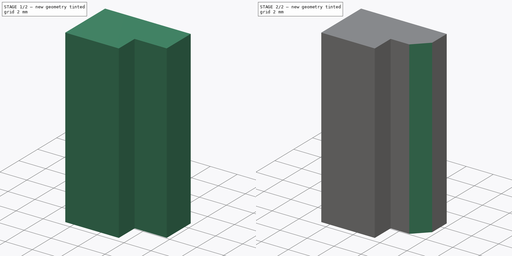
[diagram: build sequence overview — one tinted view per stage of 2, left to right]
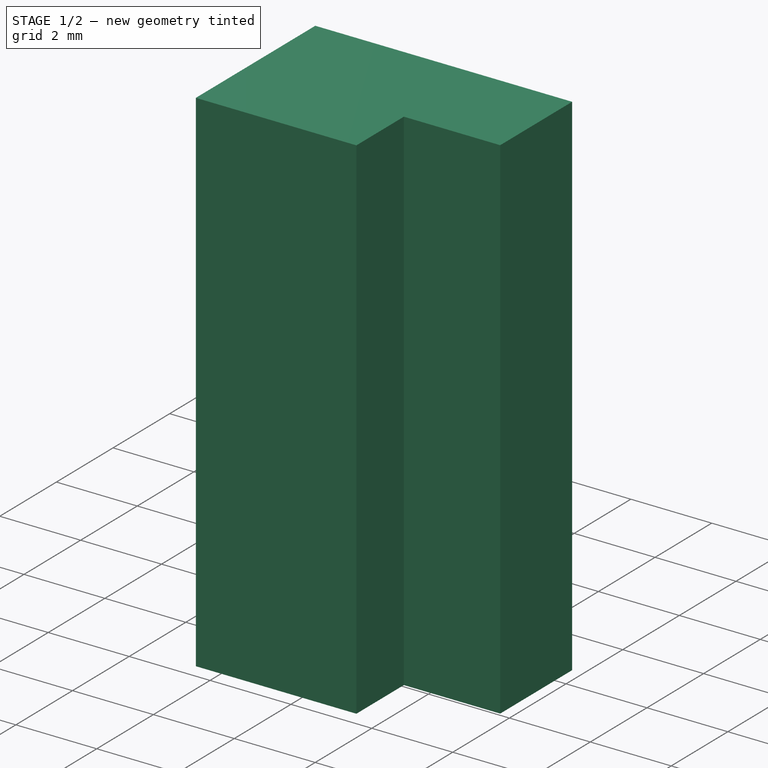
[diagram: stage 1 of 2 — iso view after this stage's code; geometry added in this stage tinted green]
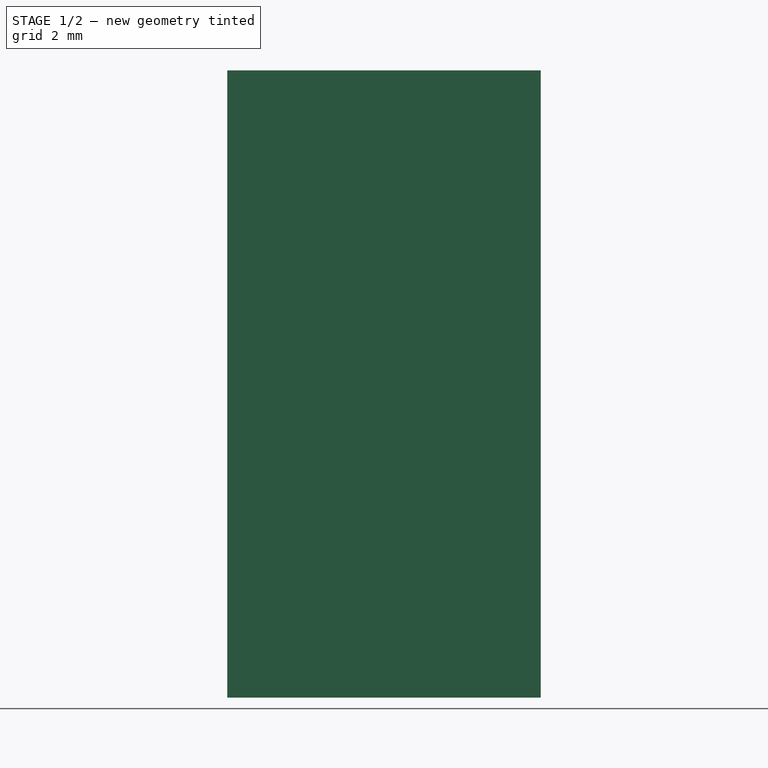
[diagram: stage 1 of 2 — front view after this stage's code; geometry added in this stage tinted green]
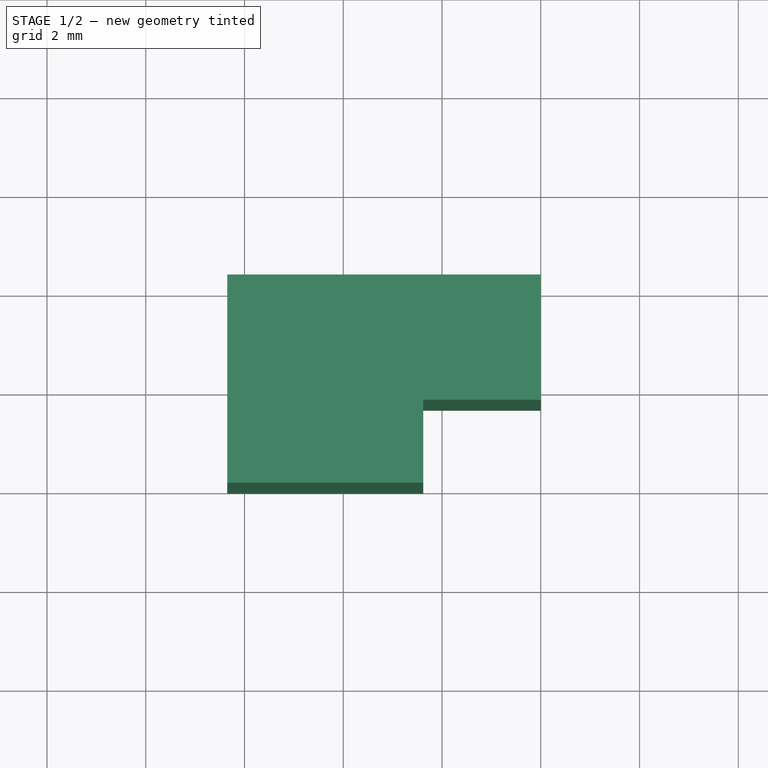
[diagram: stage 1 of 2 — top view after this stage's code; geometry added in this stage tinted green]
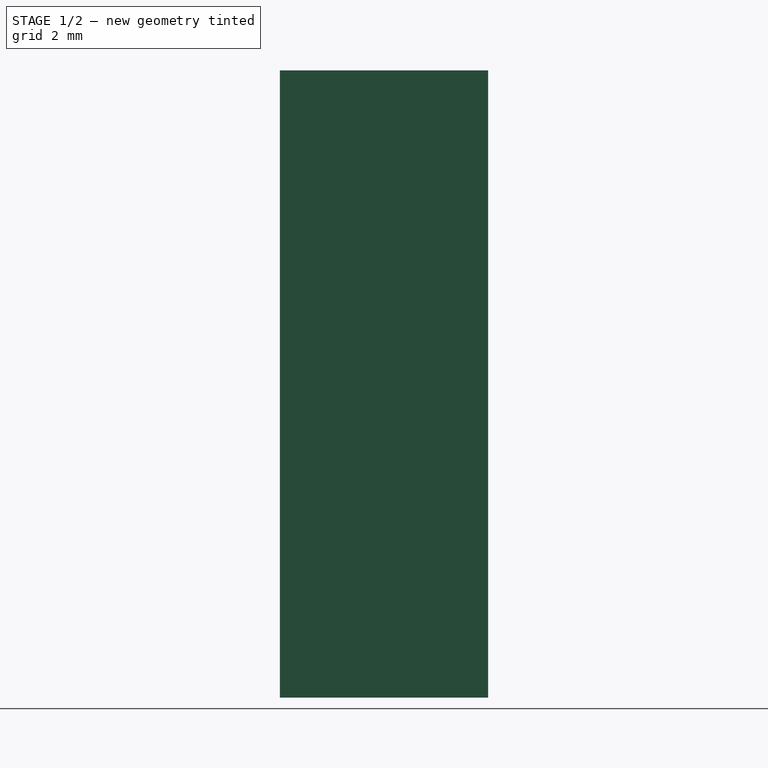
[diagram: stage 1 of 2 — right view after this stage's code; geometry added in this stage tinted green]
FCSTD DOCUMENT  (FreeCAD 0.22R36526 (Git))
Label: lcd mount lower
License: All rights reserved
LicenseURL: http://en.wikipedia.org/wiki/All_rights_reserved
objects: Sketcher::SketchObject×1, PartDesign::Pad×1, PartDesign::Chamfer×1, PartDesign::Body×1
note: 6 computed .brp shape members not serialized (recipe doc carries the construction recipe); baked Part::Feature solids carry a one-line shape summary decoded from their .brp

FEATURE [Sketcher::SketchObject] Sketch
  AttachmentSupport = -> [XY_Plane]
  FullyConstrained = false
  MapMode = 5
  sketch-geometry (10):
    g0: LineSegment StartX=-6.35 StartY=0 StartZ=0 EndX=-6.35 EndY=4.2164 EndZ=0
    g1: LineSegment StartX=-6.35 StartY=4.2164 StartZ=0 EndX=0 EndY=4.2164 EndZ=0
    g2: LineSegment StartX=0 StartY=4.2164 StartZ=0 EndX=0 EndY=1.6764 EndZ=0
    g3: LineSegment StartX=0 StartY=1.6764 StartZ=0 EndX=-2.38125 EndY=1.6764 EndZ=0
    g4: LineSegment StartX=-2.38125 StartY=1.6764 StartZ=0 EndX=-2.38125 EndY=0 EndZ=0
    g5: LineSegment StartX=-2.38125 StartY=0 StartZ=0 EndX=-6.35 EndY=0 EndZ=0
    g6: LineSegment StartX=-2.38125 StartY=1.6764 StartZ=0 EndX=-2.38125 EndY=0 EndZ=0
    g7: LineSegment StartX=-2.38125 StartY=0 StartZ=0 EndX=18.191 EndY=0 EndZ=0
    g8: LineSegment StartX=18.191 StartY=0 StartZ=0 EndX=18.191 EndY=1.6764 EndZ=0
    g9: LineSegment StartX=18.191 StartY=1.6764 StartZ=0 EndX=-2.38125 EndY=1.6764 EndZ=0
  constraints (28):
    c: PointOnObject(g0,g-1)
    c: Vertical(g0)
    c: Coincident(g0,g1)
    c: PointOnObject(g1,g-2)
    c: Horizontal(g1)
    c: Coincident(g1,g2)
    c: PointOnObject(g2,g-2)
    c: Coincident(g2,g3)
    c: Horizontal(g3)
    c: Coincident(g3,g4)
    c: PointOnObject(g4,g-1)
    c: Vertical(g4)
    c: Coincident(g4,g5)
    c: Coincident(g5,g0)
    c: DistanceX(g5,g5) = 3.96875
    c: DistanceY(g2,g2) = 2.54
    c: Coincident(g6,g7)
    c: Coincident(g7,g8)
    c: Coincident(g8,g9)
    c: Coincident(g9,g6)
    c: Vertical(g6)
    c: Vertical(g8)
    c: Horizontal(g7)
    c: Horizontal(g9)
    c: Coincident(g6,g3)
    c: PointOnObject(g7,g-1)
    c: DistanceY(g8,g8) = 1.6764
    c: DistanceX(g0,g-1) = 6.35
FEATURE [PartDesign::Pad] Pad
  Direction = (0,0,1)
  Length = 12.7
  Length2 = 10
  Profile = -> Sketch
  ReferenceAxis = -> Sketch [N_Axis]
  Suppressed = false
  Type = 0
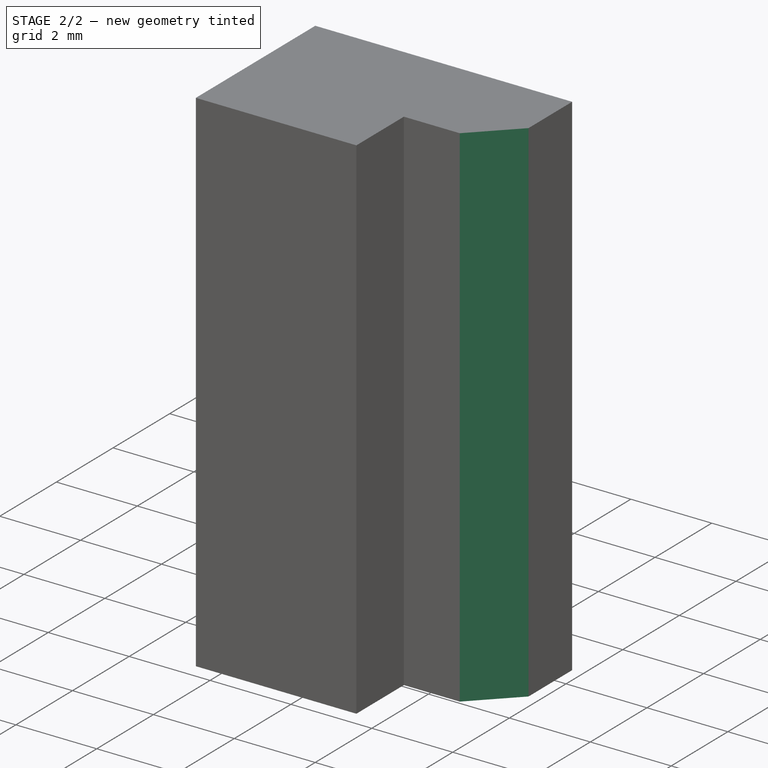
[diagram: stage 2 of 2 — iso view after this stage's code; geometry added in this stage tinted green]
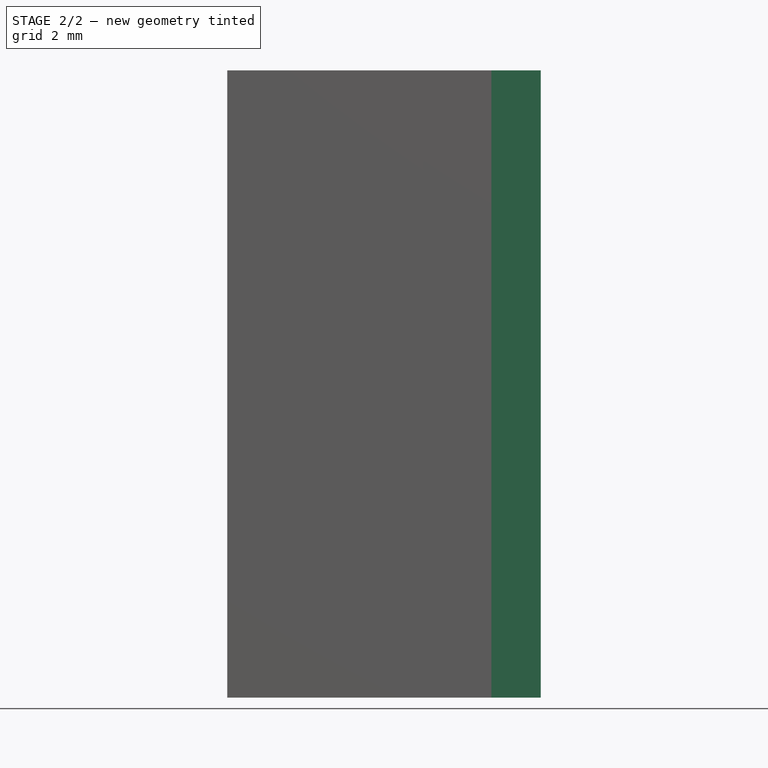
[diagram: stage 2 of 2 — front view after this stage's code; geometry added in this stage tinted green]
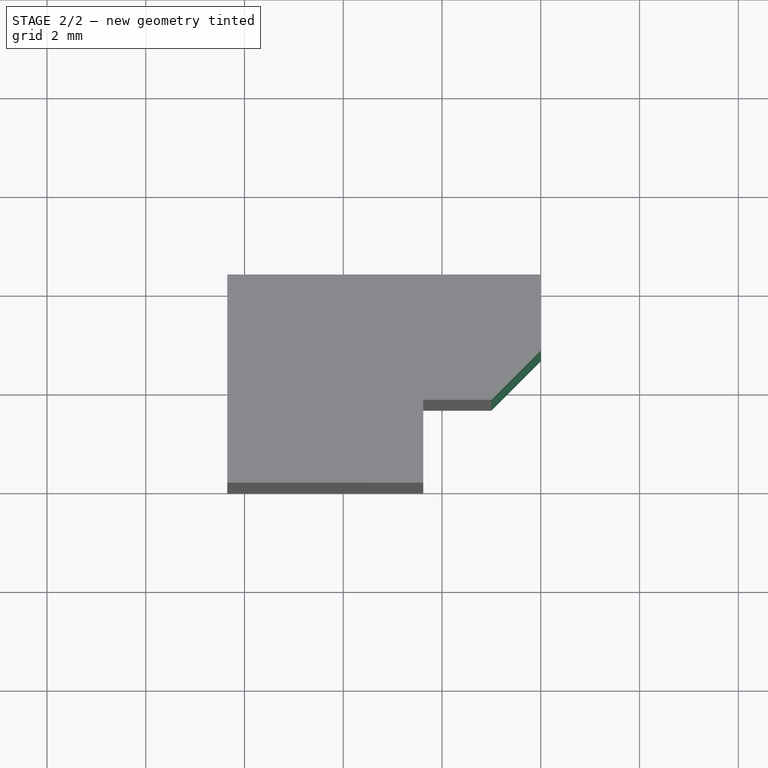
[diagram: stage 2 of 2 — top view after this stage's code; geometry added in this stage tinted green]
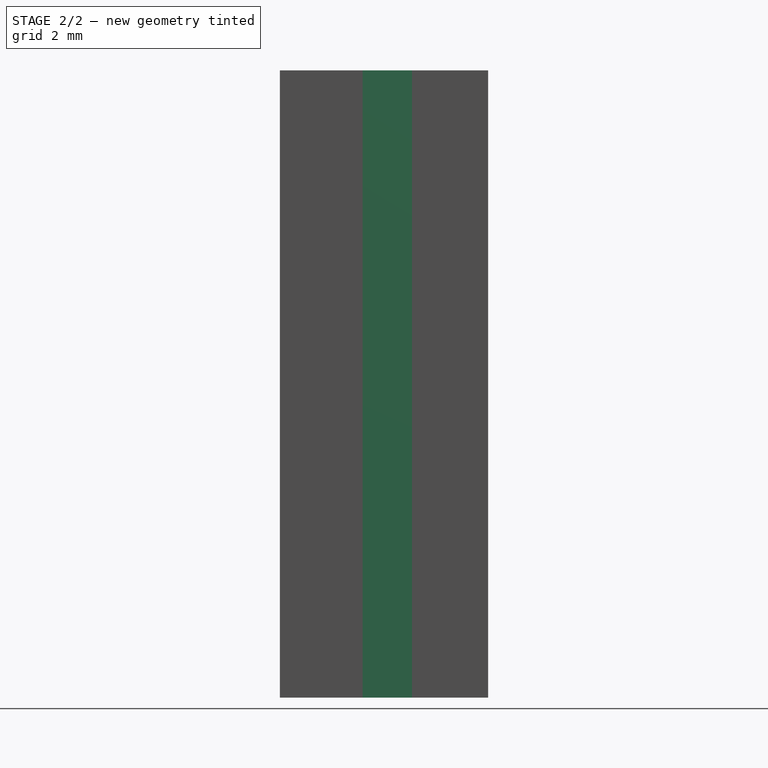
[diagram: stage 2 of 2 — right view after this stage's code; geometry added in this stage tinted green]
FEATURE [PartDesign::Chamfer] Chamfer
  Angle = 45
  Base = -> Pad [Edge8]
  BaseFeature = -> Pad
  ChamferType = 0
  FlipDirection = false
  Size = 1
  Size2 = 1
  SupportTransform = false
  Suppressed = false
  UseAllEdges = false
FEATURE [PartDesign::Body] Body
  Group = -> [Sketch,Pad,Chamfer]
  Origin = -> Origin
  Tip = -> Chamfer
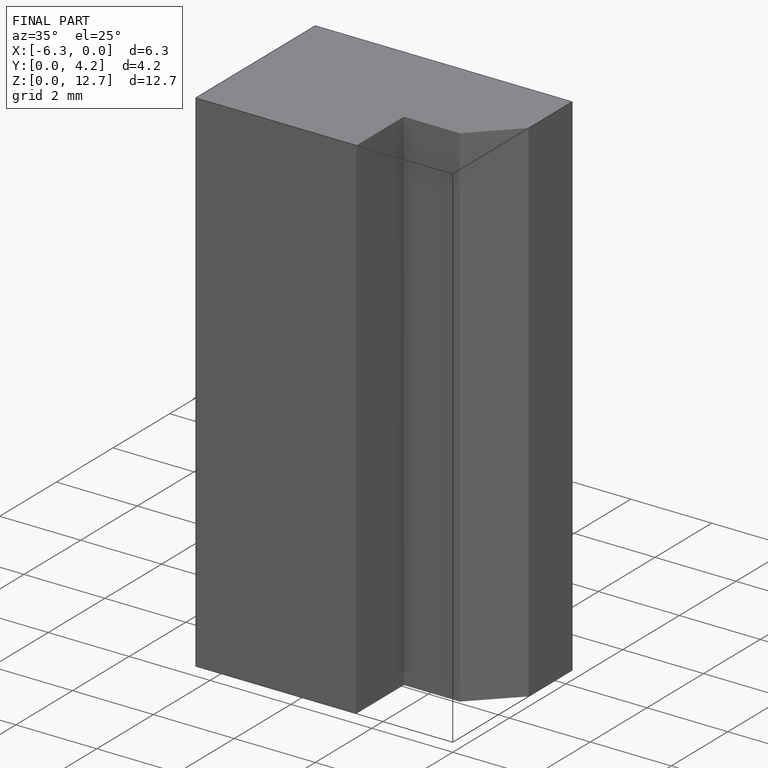
[diagram: finished part — iso view with bounding-box wireframe]
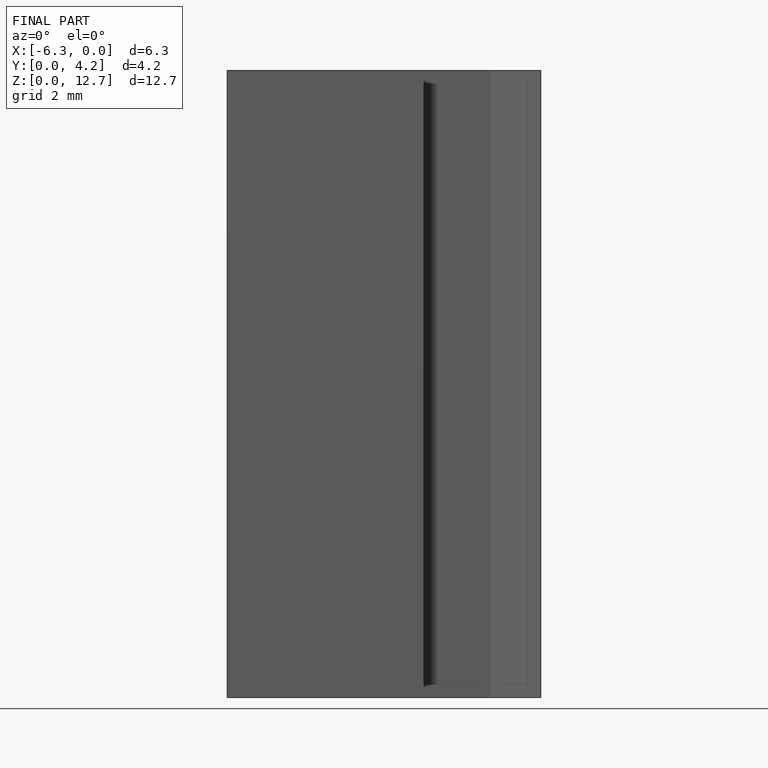
[diagram: finished part — front view with bounding-box wireframe]
